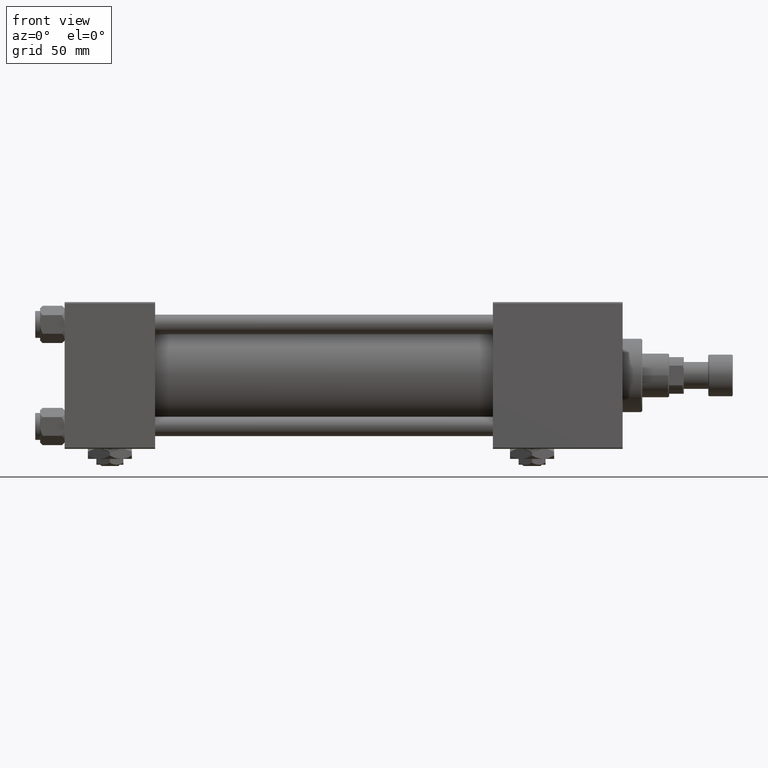
[diagram: clean part render]
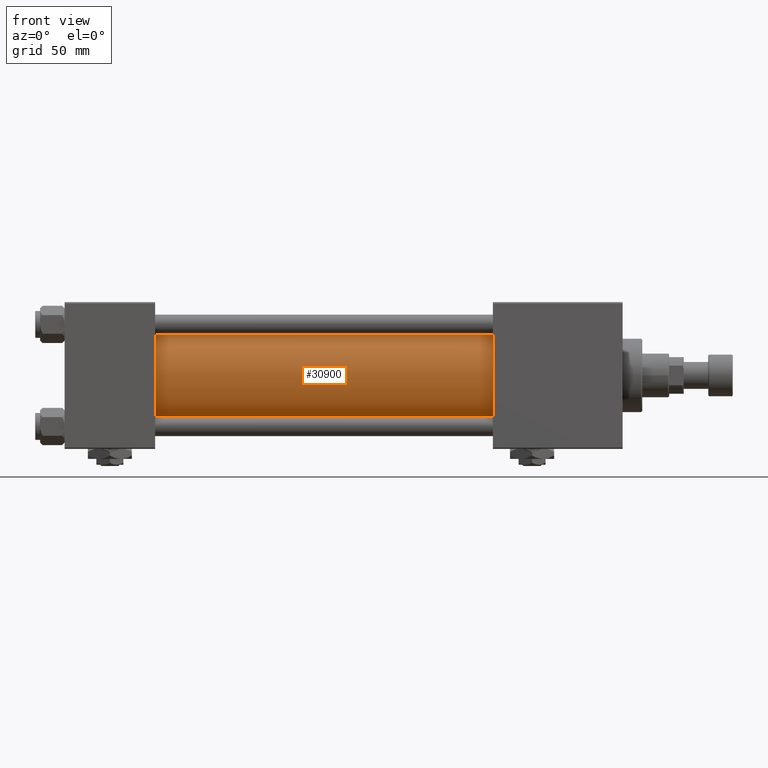
[diagram: same view with one face highlighted and labeled with its STEP entity id]
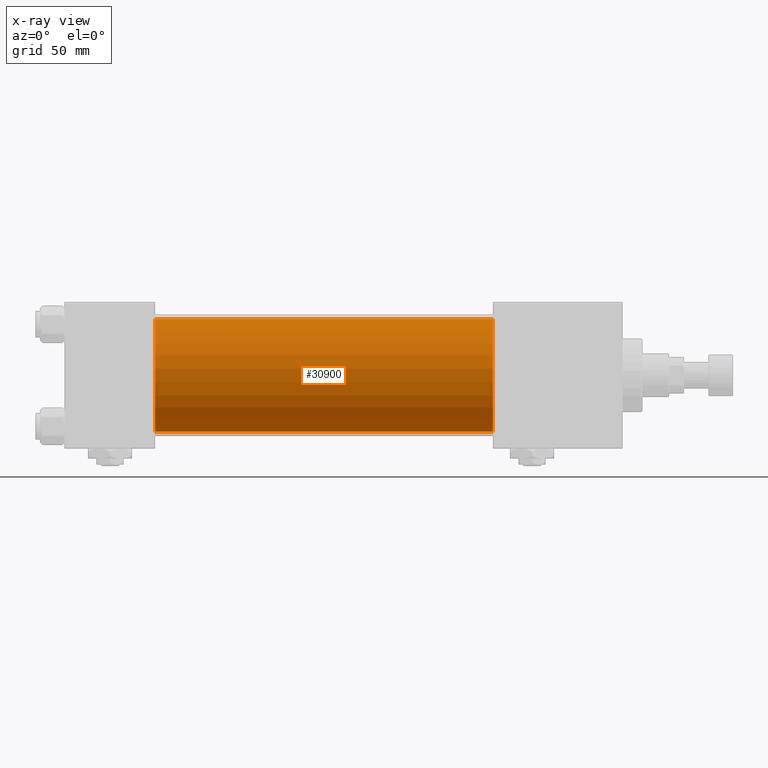
[diagram: x-ray of the same camera — body ghosted, the highlighted face saturated]
A machine part, front view. The second image highlights one B-rep face of the part: STEP entity #30900.
The next image is the same camera in x-ray: the body ghosted, the highlighted face saturated — about 0% of this face is hidden behind the body in this view.
In plain terms, the highlighted cylindrical surface (partial cylindrical patch) has radius 23 mm, axis along (-1, -0, -0).
Its self-contained STEP definition (entity closure, byte-faithful):
#2148 = CARTESIAN_POINT ( 'NONE',  ( 37.00000000000000711, -2.602085213965210642E-15, 0.000000000000000000 ) ) ;
#2716 = CARTESIAN_POINT ( 'NONE',  ( 175.0000000000000284, -2.602085213965210642E-15, 0.000000000000000000 ) ) ;
#3776 = DIRECTION ( 'NONE',  ( -1.000000000000000000, -0.000000000000000000, -0.000000000000000000 ) ) ;
#6195 = CYLINDRICAL_SURFACE ( 'NONE', #36247, 23.00000000000000000 ) ;
#6493 = EDGE_LOOP ( 'NONE', ( #25003, #27845, #36393, #25922 ) ) ;
#7286 = CARTESIAN_POINT ( 'NONE',  ( 175.0000000000000284, 2.146024240737016609E-16, -23.00000000000000000 ) ) ;
#8417 = CIRCLE ( 'NONE', #45082, 23.00000000000000000 ) ;
#9897 = VERTEX_POINT ( 'NONE', #7286 ) ;
#15812 = EDGE_CURVE ( 'NONE', #40450, #9897, #39402, .T. ) ;
#16616 = CARTESIAN_POINT ( 'NONE',  ( 175.0000000000000284, -2.602085213965210642E-15, 23.00000000000000000 ) ) ;
#20615 = VERTEX_POINT ( 'NONE', #48005 ) ;
#22702 = DIRECTION ( 'NONE',  ( 1.000000000000000000, -0.000000000000000000, 0.000000000000000000 ) ) ;
#23004 = DIRECTION ( 'NONE',  ( 0.000000000000000000, 0.000000000000000000, 1.000000000000000000 ) ) ;
#23030 = CARTESIAN_POINT ( 'NONE',  ( 175.0000000000000284, 2.146024240737016609E-16, -23.00000000000000000 ) ) ;
#24063 = LINE ( 'NONE', #40360, #27015 ) ;
#24946 = VECTOR ( 'NONE', #50802, 1000.000000000000000 ) ;
#25003 = ORIENTED_EDGE ( 'NONE', *, *, #52101, .F. ) ;
#25922 = ORIENTED_EDGE ( 'NONE', *, *, #28858, .T. ) ;
#27015 = VECTOR ( 'NONE', #3776, 1000.000000000000000 ) ;
#27845 = ORIENTED_EDGE ( 'NONE', *, *, #15812, .F. ) ;
#28858 = EDGE_CURVE ( 'NONE', #48441, #20615, #8417, .T. ) ;
#29555 = CARTESIAN_POINT ( 'NONE',  ( 37.00000000000000711, -2.602085213965210642E-15, 23.00000000000000000 ) ) ;
#30188 = DIRECTION ( 'NONE',  ( 0.000000000000000000, 0.000000000000000000, -1.000000000000000000 ) ) ;
#30455 = CARTESIAN_POINT ( 'NONE',  ( 175.0000000000000284, -2.602085213965210642E-15, 0.000000000000000000 ) ) ;
#30900 = ADVANCED_FACE ( 'NONE', ( #39038 ), #6195, .T. ) ;
#34121 = EDGE_CURVE ( 'NONE', #40450, #48441, #24063, .T. ) ;
#34729 = DIRECTION ( 'NONE',  ( 1.000000000000000000, 0.000000000000000000, 0.000000000000000000 ) ) ;
#36004 = AXIS2_PLACEMENT_3D ( 'NONE', #30455, #34729, #30188 ) ;
#36247 = AXIS2_PLACEMENT_3D ( 'NONE', #2716, #47294, #23004 ) ;
#36393 = ORIENTED_EDGE ( 'NONE', *, *, #34121, .T. ) ;
#38997 = DIRECTION ( 'NONE',  ( 0.000000000000000000, 0.000000000000000000, 1.000000000000000000 ) ) ;
#39038 = FACE_OUTER_BOUND ( 'NONE', #6493, .T. ) ;
#39402 = CIRCLE ( 'NONE', #36004, 23.00000000000000000 ) ;
#40360 = CARTESIAN_POINT ( 'NONE',  ( 175.0000000000000284, -2.602085213965210642E-15, 23.00000000000000000 ) ) ;
#40450 = VERTEX_POINT ( 'NONE', #16616 ) ;
#43069 = LINE ( 'NONE', #23030, #24946 ) ;
#45082 = AXIS2_PLACEMENT_3D ( 'NONE', #2148, #22702, #38997 ) ;
#47294 = DIRECTION ( 'NONE',  ( -1.000000000000000000, -0.000000000000000000, -0.000000000000000000 ) ) ;
#48005 = CARTESIAN_POINT ( 'NONE',  ( 37.00000000000000711, 2.146024240737016609E-16, -23.00000000000000000 ) ) ;
#48441 = VERTEX_POINT ( 'NONE', #29555 ) ;
#50802 = DIRECTION ( 'NONE',  ( -1.000000000000000000, -0.000000000000000000, -0.000000000000000000 ) ) ;
#52101 = EDGE_CURVE ( 'NONE', #9897, #20615, #43069, .T. ) ;